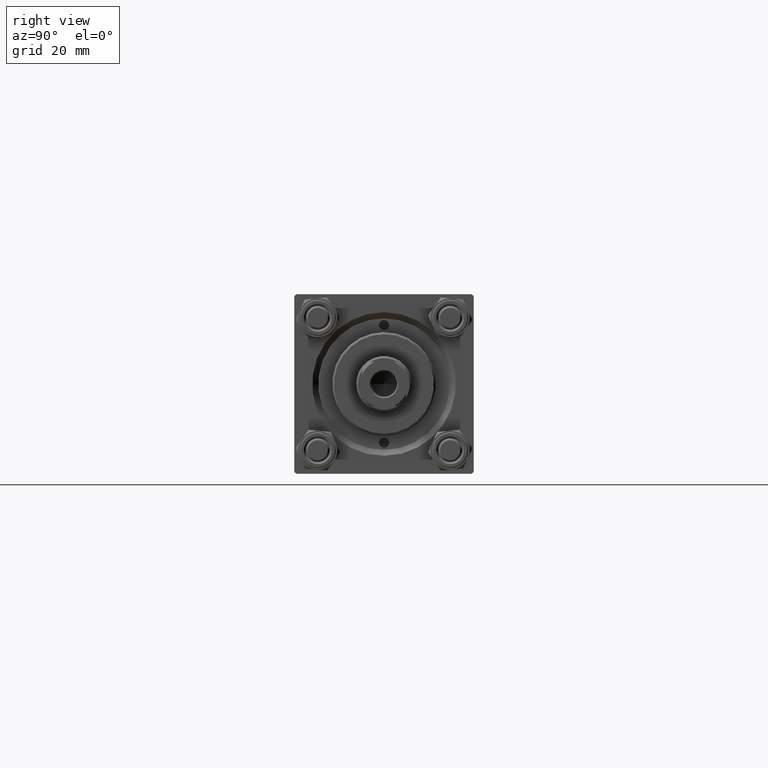
[diagram: clean part render]
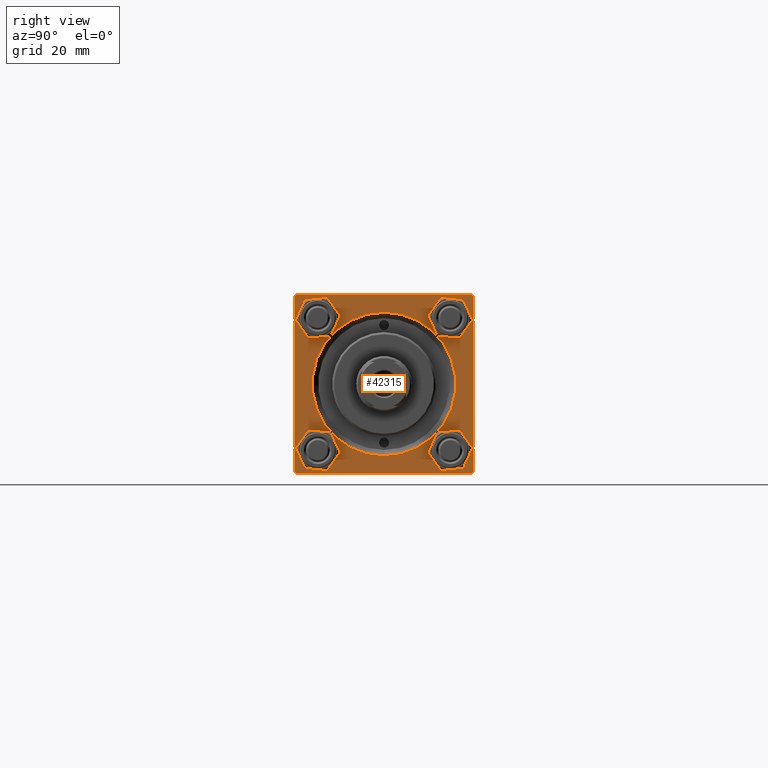
[diagram: same view with one face highlighted and labeled with its STEP entity id]
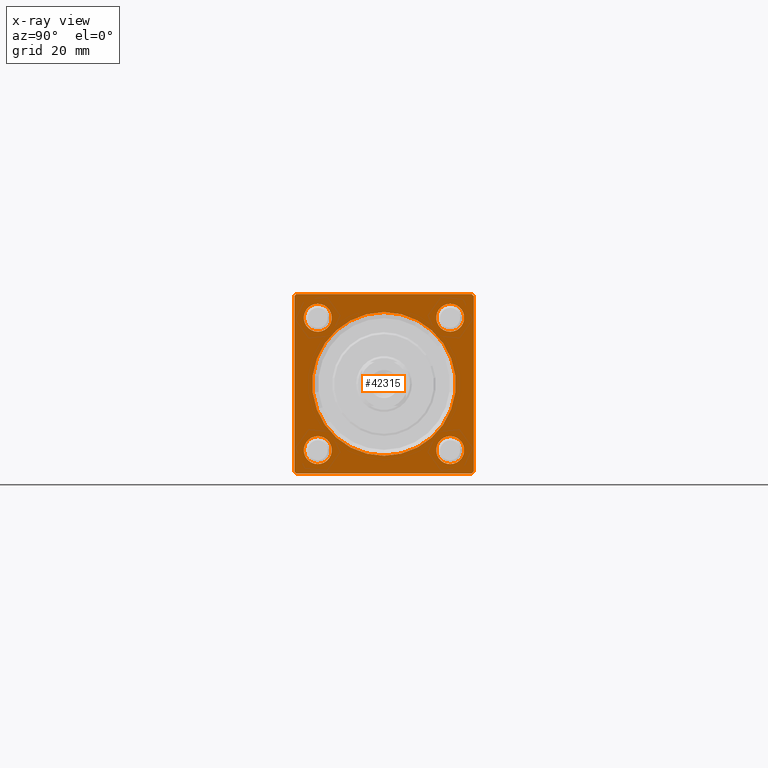
[diagram: x-ray of the same camera — body ghosted, the highlighted face saturated]
A machine part, right view. The second image highlights one B-rep face of the part: STEP entity #42315.
The next image is the same camera in x-ray: the body ghosted, the highlighted face saturated — about 0% of this face is hidden behind the body in this view.
In plain terms, the highlighted planar face has unit normal (-1, 0, 0).
Its self-contained STEP definition (entity closure, byte-faithful):
#274 = ORIENTED_EDGE ( 'NONE', *, *, #43218, .T. ) ;
#417 = VERTEX_POINT ( 'NONE', #15940 ) ;
#421 = ORIENTED_EDGE ( 'NONE', *, *, #32945, .T. ) ;
#925 = AXIS2_PLACEMENT_3D ( 'NONE', #8414, #2530, #17964 ) ;
#966 = EDGE_CURVE ( 'NONE', #25151, #32573, #45475, .T. ) ;
#1043 = ORIENTED_EDGE ( 'NONE', *, *, #966, .T. ) ;
#1188 = EDGE_LOOP ( 'NONE', ( #2690, #5339 ) ) ;
#1194 = ORIENTED_EDGE ( 'NONE', *, *, #38729, .T. ) ;
#1624 = DIRECTION ( 'NONE',  ( -1.000000000000000000, 0.000000000000000000, -0.000000000000000000 ) ) ;
#1766 = DIRECTION ( 'NONE',  ( -1.000000000000000000, 0.000000000000000000, -0.000000000000000000 ) ) ;
#2228 = AXIS2_PLACEMENT_3D ( 'NONE', #25476, #47762, #40891 ) ;
#2329 = VECTOR ( 'NONE', #28066, 1000.000000000000000 ) ;
#2530 = DIRECTION ( 'NONE',  ( -1.000000000000000000, 0.000000000000000000, -0.000000000000000000 ) ) ;
#2690 = ORIENTED_EDGE ( 'NONE', *, *, #22087, .T. ) ;
#2729 = VECTOR ( 'NONE', #34409, 1000.000000000000000 ) ;
#3083 = EDGE_CURVE ( 'NONE', #49104, #14747, #27061, .T. ) ;
#3614 = AXIS2_PLACEMENT_3D ( 'NONE', #48304, #1766, #17938 ) ;
#3816 = CIRCLE ( 'NONE', #28057, 3.500000000000031086 ) ;
#3884 = VECTOR ( 'NONE', #5312, 1000.000000000000000 ) ;
#4087 = EDGE_LOOP ( 'NONE', ( #19819, #37246 ) ) ;
#4578 = CARTESIAN_POINT ( 'NONE',  ( 123.0000000000000142, 0.000000000000000000, 0.000000000000000000 ) ) ;
#5312 = DIRECTION ( 'NONE',  ( -0.000000000000000000, -0.7071067811865573427, -0.7071067811865378028 ) ) ;
#5339 = ORIENTED_EDGE ( 'NONE', *, *, #8278, .T. ) ;
#5782 = CIRCLE ( 'NONE', #12208, 3.500000000000031086 ) ;
#6213 = DIRECTION ( 'NONE',  ( -1.000000000000000000, 0.000000000000000000, -0.000000000000000000 ) ) ;
#6461 = DIRECTION ( 'NONE',  ( -1.000000000000000000, 0.000000000000000000, -0.000000000000000000 ) ) ;
#6506 = VECTOR ( 'NONE', #12987, 1000.000000000000000 ) ;
#6693 = DIRECTION ( 'NONE',  ( 0.000000000000000000, 0.000000000000000000, 1.000000000000000000 ) ) ;
#6950 = VERTEX_POINT ( 'NONE', #38915 ) ;
#7809 = CIRCLE ( 'NONE', #32917, 3.500000000000031086 ) ;
#8278 = EDGE_CURVE ( 'NONE', #21916, #417, #15065, .T. ) ;
#8365 = PLANE ( 'NONE',  #11285 ) ;
#8414 = CARTESIAN_POINT ( 'NONE',  ( 123.0000000000000142, -16.59999999999999076, -16.60000000000000853 ) ) ;
#8486 = CIRCLE ( 'NONE', #3614, 18.00000000000000355 ) ;
#9095 = CARTESIAN_POINT ( 'NONE',  ( 123.0000000000000142, -22.49999999999999645, 22.00000000000000711 ) ) ;
#9204 = CARTESIAN_POINT ( 'NONE',  ( 123.0000000000000142, -22.49999999999999645, -21.99999999999997868 ) ) ;
#9340 = EDGE_LOOP ( 'NONE', ( #9497, #1043 ) ) ;
#9417 = CARTESIAN_POINT ( 'NONE',  ( 123.0000000000000142, 22.50000000000000355, -22.00000000000001066 ) ) ;
#9497 = ORIENTED_EDGE ( 'NONE', *, *, #26085, .T. ) ;
#9593 = CARTESIAN_POINT ( 'NONE',  ( 123.0000000000000142, -22.49999999999999645, 22.49999999999999289 ) ) ;
#10143 = CARTESIAN_POINT ( 'NONE',  ( 123.0000000000000142, 22.50000000000000355, -21.99999999999999645 ) ) ;
#10229 = ORIENTED_EDGE ( 'NONE', *, *, #12821, .F. ) ;
#10864 = DIRECTION ( 'NONE',  ( -1.000000000000000000, 0.000000000000000000, -0.000000000000000000 ) ) ;
#10993 = DIRECTION ( 'NONE',  ( 0.000000000000000000, 0.000000000000000000, 1.000000000000000000 ) ) ;
#11285 = AXIS2_PLACEMENT_3D ( 'NONE', #4578, #31647, #37185 ) ;
#11415 = CIRCLE ( 'NONE', #925, 3.500000000000031086 ) ;
#11460 = EDGE_CURVE ( 'NONE', #24367, #34639, #47210, .T. ) ;
#11998 = CIRCLE ( 'NONE', #23295, 3.500000000000031086 ) ;
#12017 = VERTEX_POINT ( 'NONE', #40743 ) ;
#12147 = FACE_BOUND ( 'NONE', #1188, .T. ) ;
#12208 = AXIS2_PLACEMENT_3D ( 'NONE', #25673, #48705, #6693 ) ;
#12374 = EDGE_CURVE ( 'NONE', #49527, #29116, #8486, .T. ) ;
#12724 = CARTESIAN_POINT ( 'NONE',  ( 123.0000000000000142, 16.59999999999999787, 16.60000000000000497 ) ) ;
#12744 = DIRECTION ( 'NONE',  ( 0.000000000000000000, -1.000000000000000000, -2.312964634635742957E-16 ) ) ;
#12821 = EDGE_CURVE ( 'NONE', #38061, #39693, #24958, .T. ) ;
#12987 = DIRECTION ( 'NONE',  ( 0.000000000000000000, -0.7071067811865573427, 0.7071067811865378028 ) ) ;
#13187 = DIRECTION ( 'NONE',  ( 0.000000000000000000, 0.7071067811865425767, -0.7071067811865525687 ) ) ;
#13212 = VERTEX_POINT ( 'NONE', #23011 ) ;
#14327 = DIRECTION ( 'NONE',  ( -1.000000000000000000, 0.000000000000000000, -0.000000000000000000 ) ) ;
#14747 = VERTEX_POINT ( 'NONE', #10143 ) ;
#15046 = ORIENTED_EDGE ( 'NONE', *, *, #38779, .T. ) ;
#15065 = CIRCLE ( 'NONE', #17510, 3.500000000000031086 ) ;
#15940 = CARTESIAN_POINT ( 'NONE',  ( 123.0000000000000142, -16.59999999999999076, 13.09999999999997655 ) ) ;
#17053 = LINE ( 'NONE', #48406, #6506 ) ;
#17510 = AXIS2_PLACEMENT_3D ( 'NONE', #40393, #14327, #36606 ) ;
#17938 = DIRECTION ( 'NONE',  ( 0.000000000000000000, 0.000000000000000000, 1.000000000000000000 ) ) ;
#17964 = DIRECTION ( 'NONE',  ( 0.000000000000000000, 0.000000000000000000, 1.000000000000000000 ) ) ;
#18147 = CARTESIAN_POINT ( 'NONE',  ( 123.0000000000000142, 16.59999999999999787, 13.09999999999997300 ) ) ;
#18401 = EDGE_CURVE ( 'NONE', #29116, #49527, #29669, .T. ) ;
#18497 = EDGE_CURVE ( 'NONE', #6950, #33002, #3816, .T. ) ;
#18638 = CARTESIAN_POINT ( 'NONE',  ( 123.0000000000000142, 16.59999999999999787, -16.60000000000000497 ) ) ;
#18724 = ORIENTED_EDGE ( 'NONE', *, *, #3083, .F. ) ;
#19819 = ORIENTED_EDGE ( 'NONE', *, *, #18401, .T. ) ;
#20095 = CARTESIAN_POINT ( 'NONE',  ( 123.0000000000000142, 22.50000000000000355, 22.50000000000000355 ) ) ;
#20600 = VECTOR ( 'NONE', #43960, 1000.000000000000000 ) ;
#21055 = DIRECTION ( 'NONE',  ( -0.000000000000000000, 0.7071067811865573427, 0.7071067811865378028 ) ) ;
#21403 = DIRECTION ( 'NONE',  ( 0.000000000000000000, 0.000000000000000000, 1.000000000000000000 ) ) ;
#21484 = LINE ( 'NONE', #9593, #2329 ) ;
#21916 = VERTEX_POINT ( 'NONE', #31789 ) ;
#22087 = EDGE_CURVE ( 'NONE', #417, #21916, #7809, .T. ) ;
#22496 = VERTEX_POINT ( 'NONE', #22990 ) ;
#22696 = CARTESIAN_POINT ( 'NONE',  ( 123.0000000000000142, -16.59999999999999076, -13.09999999999997655 ) ) ;
#22990 = CARTESIAN_POINT ( 'NONE',  ( 123.0000000000000142, -21.99999999999998224, 22.49999999999999289 ) ) ;
#23011 = CARTESIAN_POINT ( 'NONE',  ( 123.0000000000000142, -22.49999999999999645, 22.00000000000000711 ) ) ;
#23295 = AXIS2_PLACEMENT_3D ( 'NONE', #33159, #10864, #33902 ) ;
#24079 = CARTESIAN_POINT ( 'NONE',  ( 123.0000000000000142, -21.99999999999998224, -22.50000000000000000 ) ) ;
#24367 = VERTEX_POINT ( 'NONE', #38110 ) ;
#24517 = LINE ( 'NONE', #9095, #3884 ) ;
#24684 = ORIENTED_EDGE ( 'NONE', *, *, #33552, .T. ) ;
#24958 = LINE ( 'NONE', #40136, #20600 ) ;
#25151 = VERTEX_POINT ( 'NONE', #30861 ) ;
#25476 = CARTESIAN_POINT ( 'NONE',  ( 123.0000000000000142, 0.000000000000000000, 0.000000000000000000 ) ) ;
#25673 = CARTESIAN_POINT ( 'NONE',  ( 123.0000000000000142, 16.59999999999999787, -16.60000000000000497 ) ) ;
#26085 = EDGE_CURVE ( 'NONE', #32573, #25151, #11998, .T. ) ;
#27061 = LINE ( 'NONE', #38185, #2729 ) ;
#27589 = FACE_BOUND ( 'NONE', #4087, .T. ) ;
#27952 = EDGE_CURVE ( 'NONE', #43210, #39693, #32436, .T. ) ;
#28057 = AXIS2_PLACEMENT_3D ( 'NONE', #18638, #34064, #45687 ) ;
#28066 = DIRECTION ( 'NONE',  ( 0.000000000000000000, 0.000000000000000000, -1.000000000000000000 ) ) ;
#28656 = LINE ( 'NONE', #9417, #41129 ) ;
#29116 = VERTEX_POINT ( 'NONE', #42877 ) ;
#29252 = CARTESIAN_POINT ( 'NONE',  ( 123.0000000000000142, -16.59999999999999076, 16.60000000000000853 ) ) ;
#29669 = CIRCLE ( 'NONE', #2228, 18.00000000000000355 ) ;
#30861 = CARTESIAN_POINT ( 'NONE',  ( 123.0000000000000142, 16.59999999999999787, 20.10000000000003340 ) ) ;
#31397 = FACE_BOUND ( 'NONE', #38107, .T. ) ;
#31647 = DIRECTION ( 'NONE',  ( -1.000000000000000000, 0.000000000000000000, -0.000000000000000000 ) ) ;
#31789 = CARTESIAN_POINT ( 'NONE',  ( 123.0000000000000142, -16.59999999999999076, 20.10000000000003695 ) ) ;
#32427 = FACE_BOUND ( 'NONE', #40542, .T. ) ;
#32436 = LINE ( 'NONE', #47864, #43623 ) ;
#32573 = VERTEX_POINT ( 'NONE', #18147 ) ;
#32612 = VECTOR ( 'NONE', #12744, 1000.000000000000000 ) ;
#32758 = EDGE_LOOP ( 'NONE', ( #1194, #38586, #10229, #37273, #18724, #274, #45872, #15046 ) ) ;
#32917 = AXIS2_PLACEMENT_3D ( 'NONE', #29252, #6461, #21403 ) ;
#32945 = EDGE_CURVE ( 'NONE', #34639, #24367, #11415, .T. ) ;
#33002 = VERTEX_POINT ( 'NONE', #43327 ) ;
#33159 = CARTESIAN_POINT ( 'NONE',  ( 123.0000000000000142, 16.59999999999999787, 16.60000000000000497 ) ) ;
#33505 = AXIS2_PLACEMENT_3D ( 'NONE', #37318, #6213, #10993 ) ;
#33552 = EDGE_CURVE ( 'NONE', #33002, #6950, #5782, .T. ) ;
#33902 = DIRECTION ( 'NONE',  ( 0.000000000000000000, 0.000000000000000000, 1.000000000000000000 ) ) ;
#34064 = DIRECTION ( 'NONE',  ( -1.000000000000000000, 0.000000000000000000, -0.000000000000000000 ) ) ;
#34409 = DIRECTION ( 'NONE',  ( 0.000000000000000000, 0.000000000000000000, -1.000000000000000000 ) ) ;
#34639 = VERTEX_POINT ( 'NONE', #22696 ) ;
#35023 = LINE ( 'NONE', #20095, #32612 ) ;
#36606 = DIRECTION ( 'NONE',  ( 0.000000000000000000, 0.000000000000000000, 1.000000000000000000 ) ) ;
#37185 = DIRECTION ( 'NONE',  ( -0.000000000000000000, 0.000000000000000000, 1.000000000000000000 ) ) ;
#37246 = ORIENTED_EDGE ( 'NONE', *, *, #12374, .T. ) ;
#37273 = ORIENTED_EDGE ( 'NONE', *, *, #39425, .T. ) ;
#37318 = CARTESIAN_POINT ( 'NONE',  ( 123.0000000000000142, -16.59999999999999076, -16.60000000000000853 ) ) ;
#38022 = EDGE_CURVE ( 'NONE', #12017, #22496, #35023, .T. ) ;
#38061 = VERTEX_POINT ( 'NONE', #47425 ) ;
#38107 = EDGE_LOOP ( 'NONE', ( #24684, #44190 ) ) ;
#38110 = CARTESIAN_POINT ( 'NONE',  ( 123.0000000000000142, -16.59999999999999076, -20.10000000000003695 ) ) ;
#38185 = CARTESIAN_POINT ( 'NONE',  ( 123.0000000000000142, 22.50000000000000355, 22.50000000000000355 ) ) ;
#38586 = ORIENTED_EDGE ( 'NONE', *, *, #27952, .T. ) ;
#38729 = EDGE_CURVE ( 'NONE', #13212, #43210, #21484, .T. ) ;
#38779 = EDGE_CURVE ( 'NONE', #22496, #13212, #24517, .T. ) ;
#38915 = CARTESIAN_POINT ( 'NONE',  ( 123.0000000000000142, 16.59999999999999787, -13.09999999999997300 ) ) ;
#39425 = EDGE_CURVE ( 'NONE', #38061, #14747, #28656, .T. ) ;
#39693 = VERTEX_POINT ( 'NONE', #24079 ) ;
#40050 = DIRECTION ( 'NONE',  ( 0.000000000000000000, 0.000000000000000000, 1.000000000000000000 ) ) ;
#40136 = CARTESIAN_POINT ( 'NONE',  ( 123.0000000000000142, 22.50000000000000355, -22.49999999999999645 ) ) ;
#40393 = CARTESIAN_POINT ( 'NONE',  ( 123.0000000000000142, -16.59999999999999076, 16.60000000000000853 ) ) ;
#40542 = EDGE_LOOP ( 'NONE', ( #44413, #421 ) ) ;
#40743 = CARTESIAN_POINT ( 'NONE',  ( 123.0000000000000142, 21.99999999999996092, 22.50000000000000355 ) ) ;
#40891 = DIRECTION ( 'NONE',  ( 0.000000000000000000, 0.000000000000000000, 1.000000000000000000 ) ) ;
#41129 = VECTOR ( 'NONE', #21055, 1000.000000000000000 ) ;
#41413 = AXIS2_PLACEMENT_3D ( 'NONE', #12724, #1624, #40050 ) ;
#42315 = ADVANCED_FACE ( 'NONE', ( #32427, #31397, #46823, #12147, #27589, #43023 ), #8365, .F. ) ;
#42634 = CARTESIAN_POINT ( 'NONE',  ( 123.0000000000000142, 22.50000000000000355, 21.99999999999997513 ) ) ;
#42877 = CARTESIAN_POINT ( 'NONE',  ( 123.0000000000000142, 0.000000000000000000, -18.00000000000000355 ) ) ;
#43023 = FACE_OUTER_BOUND ( 'NONE', #32758, .T. ) ;
#43210 = VERTEX_POINT ( 'NONE', #9204 ) ;
#43218 = EDGE_CURVE ( 'NONE', #49104, #12017, #17053, .T. ) ;
#43327 = CARTESIAN_POINT ( 'NONE',  ( 123.0000000000000142, 16.59999999999999787, -20.10000000000003340 ) ) ;
#43623 = VECTOR ( 'NONE', #13187, 999.9999999999998863 ) ;
#43960 = DIRECTION ( 'NONE',  ( 0.000000000000000000, -1.000000000000000000, -7.709882115452476934E-17 ) ) ;
#44190 = ORIENTED_EDGE ( 'NONE', *, *, #18497, .T. ) ;
#44413 = ORIENTED_EDGE ( 'NONE', *, *, #11460, .T. ) ;
#45475 = CIRCLE ( 'NONE', #41413, 3.500000000000031086 ) ;
#45687 = DIRECTION ( 'NONE',  ( 0.000000000000000000, 0.000000000000000000, 1.000000000000000000 ) ) ;
#45872 = ORIENTED_EDGE ( 'NONE', *, *, #38022, .T. ) ;
#46823 = FACE_BOUND ( 'NONE', #9340, .T. ) ;
#47210 = CIRCLE ( 'NONE', #33505, 3.500000000000031086 ) ;
#47391 = CARTESIAN_POINT ( 'NONE',  ( 123.0000000000000142, 2.204364238465235822E-15, 18.00000000000000355 ) ) ;
#47425 = CARTESIAN_POINT ( 'NONE',  ( 123.0000000000000142, 22.00000000000000355, -22.49999999999999645 ) ) ;
#47762 = DIRECTION ( 'NONE',  ( -1.000000000000000000, 0.000000000000000000, -0.000000000000000000 ) ) ;
#47864 = CARTESIAN_POINT ( 'NONE',  ( 123.0000000000000142, -21.99999999999999645, -22.50000000000000000 ) ) ;
#48304 = CARTESIAN_POINT ( 'NONE',  ( 123.0000000000000142, 0.000000000000000000, 0.000000000000000000 ) ) ;
#48406 = CARTESIAN_POINT ( 'NONE',  ( 123.0000000000000142, 21.99999999999996092, 22.50000000000000355 ) ) ;
#48705 = DIRECTION ( 'NONE',  ( -1.000000000000000000, 0.000000000000000000, -0.000000000000000000 ) ) ;
#49104 = VERTEX_POINT ( 'NONE', #42634 ) ;
#49527 = VERTEX_POINT ( 'NONE', #47391 ) ;